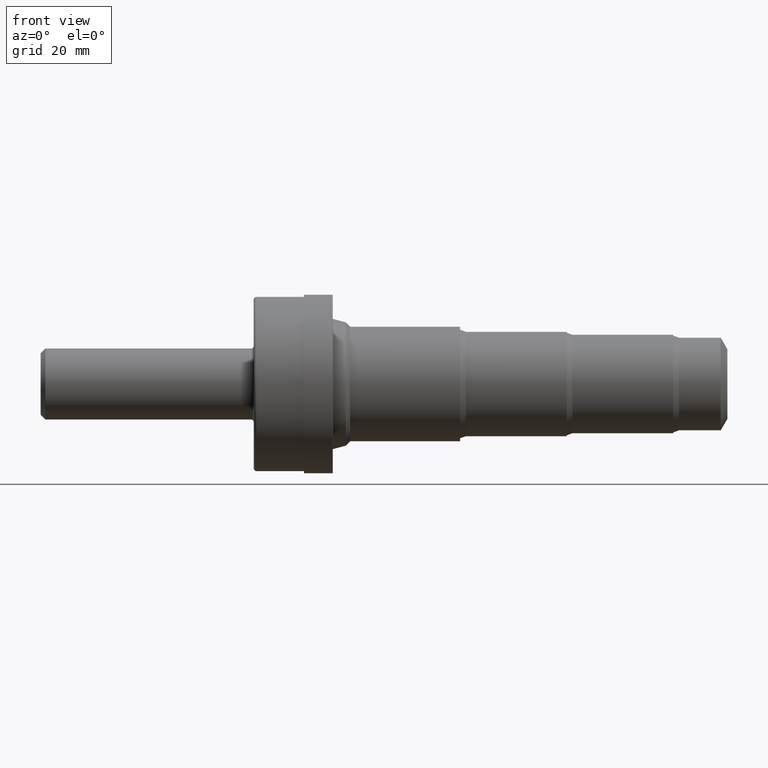
[diagram: clean part render]
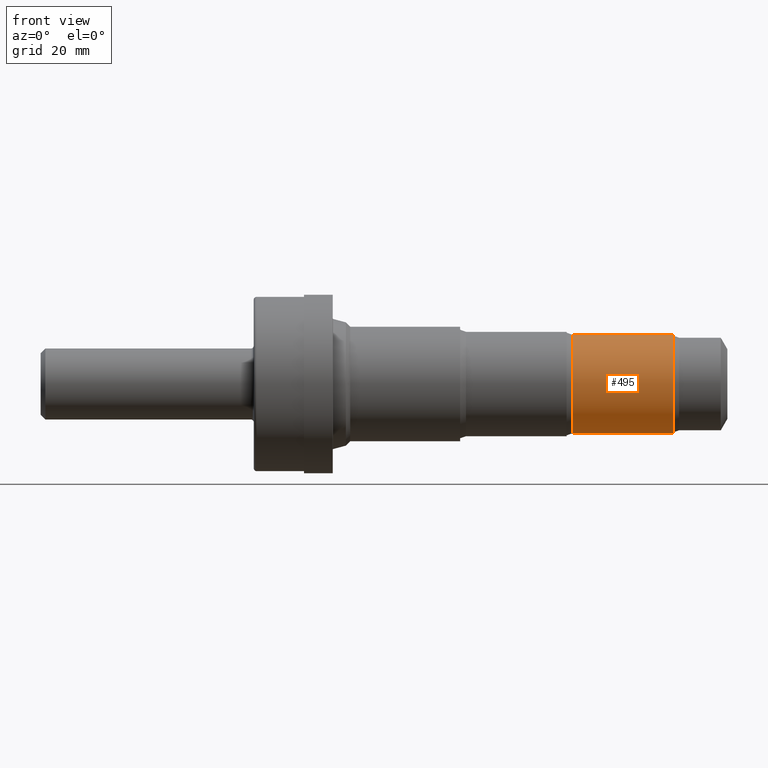
[diagram: same view with one face highlighted and labeled with its STEP entity id]
A machine part, front view. The second image highlights one B-rep face of the part: STEP entity #495.
In plain terms, the highlighted cylindrical surface (partial cylindrical patch) has radius 13.1928 mm, axis along (-1, -0, -0).
Its self-contained STEP definition (entity closure, byte-faithful):
#28 = AXIS2_PLACEMENT_3D ( 'NONE', #150, #60, #600 ) ;
#34 = DIRECTION ( 'NONE',  ( 0.0000000000000000000, 0.0000000000000000000, 1.000000000000000000 ) ) ;
#36 = DIRECTION ( 'NONE',  ( -1.000000000000000000, -0.0000000000000000000, -0.0000000000000000000 ) ) ;
#60 = DIRECTION ( 'NONE',  ( -1.000000000000000000, -0.0000000000000000000, -0.0000000000000000000 ) ) ;
#146 = CYLINDRICAL_SURFACE ( 'NONE', #825, 0.5194000000000000838 ) ;
#150 = CARTESIAN_POINT ( 'NONE',  ( 6.677999999999999936, 0.0000000000000000000, 0.0000000000000000000 ) ) ;
#183 = ORIENTED_EDGE ( 'NONE', *, *, #875, .T. ) ;
#186 = VECTOR ( 'NONE', #221, 39.37007874015748143 ) ;
#189 = DIRECTION ( 'NONE',  ( -1.000000000000000000, -0.0000000000000000000, -0.0000000000000000000 ) ) ;
#221 = DIRECTION ( 'NONE',  ( -1.000000000000000000, -0.0000000000000000000, -0.0000000000000000000 ) ) ;
#226 = VERTEX_POINT ( 'NONE', #292 ) ;
#237 = DIRECTION ( 'NONE',  ( -1.000000000000000000, -0.0000000000000000000, -0.0000000000000000000 ) ) ;
#242 = EDGE_CURVE ( 'NONE', #363, #704, #917, .T. ) ;
#277 = ORIENTED_EDGE ( 'NONE', *, *, #748, .F. ) ;
#292 = CARTESIAN_POINT ( 'NONE',  ( 5.615000000000000213, 6.360815474771353018E-17, -0.5194000000000000838 ) ) ;
#316 = CARTESIAN_POINT ( 'NONE',  ( 0.0000000000000000000, 6.360815474771353018E-17, -0.5194000000000000838 ) ) ;
#335 = VERTEX_POINT ( 'NONE', #959 ) ;
#350 = EDGE_CURVE ( 'NONE', #226, #704, #710, .T. ) ;
#363 = VERTEX_POINT ( 'NONE', #769 ) ;
#408 = CIRCLE ( 'NONE', #28, 0.5194000000000000838 ) ;
#437 = LINE ( 'NONE', #316, #186 ) ;
#454 = EDGE_LOOP ( 'NONE', ( #277, #183, #774, #631 ) ) ;
#495 = ADVANCED_FACE ( 'NONE', ( #663 ), #146, .T. ) ;
#600 = DIRECTION ( 'NONE',  ( 0.0000000000000000000, 0.0000000000000000000, 1.000000000000000000 ) ) ;
#631 = ORIENTED_EDGE ( 'NONE', *, *, #350, .F. ) ;
#663 = FACE_OUTER_BOUND ( 'NONE', #454, .T. ) ;
#704 = VERTEX_POINT ( 'NONE', #820 ) ;
#710 = CIRCLE ( 'NONE', #1035, 0.5194000000000000838 ) ;
#748 = EDGE_CURVE ( 'NONE', #335, #226, #437, .T. ) ;
#757 = CARTESIAN_POINT ( 'NONE',  ( 5.615000000000000213, 0.0000000000000000000, 0.0000000000000000000 ) ) ;
#769 = CARTESIAN_POINT ( 'NONE',  ( 6.677999999999999936, 0.0000000000000000000, 0.5194000000000000838 ) ) ;
#774 = ORIENTED_EDGE ( 'NONE', *, *, #242, .T. ) ;
#820 = CARTESIAN_POINT ( 'NONE',  ( 5.615000000000000213, 0.0000000000000000000, 0.5194000000000000838 ) ) ;
#825 = AXIS2_PLACEMENT_3D ( 'NONE', #975, #189, #34 ) ;
#861 = VECTOR ( 'NONE', #36, 39.37007874015748143 ) ;
#875 = EDGE_CURVE ( 'NONE', #335, #363, #408, .T. ) ;
#917 = LINE ( 'NONE', #996, #861 ) ;
#959 = CARTESIAN_POINT ( 'NONE',  ( 6.677999999999999936, 6.360815474771353018E-17, -0.5194000000000000838 ) ) ;
#965 = DIRECTION ( 'NONE',  ( 0.0000000000000000000, 0.0000000000000000000, 1.000000000000000000 ) ) ;
#975 = CARTESIAN_POINT ( 'NONE',  ( 0.0000000000000000000, 0.0000000000000000000, 0.0000000000000000000 ) ) ;
#996 = CARTESIAN_POINT ( 'NONE',  ( 0.0000000000000000000, 0.0000000000000000000, 0.5194000000000000838 ) ) ;
#1035 = AXIS2_PLACEMENT_3D ( 'NONE', #757, #237, #965 ) ;